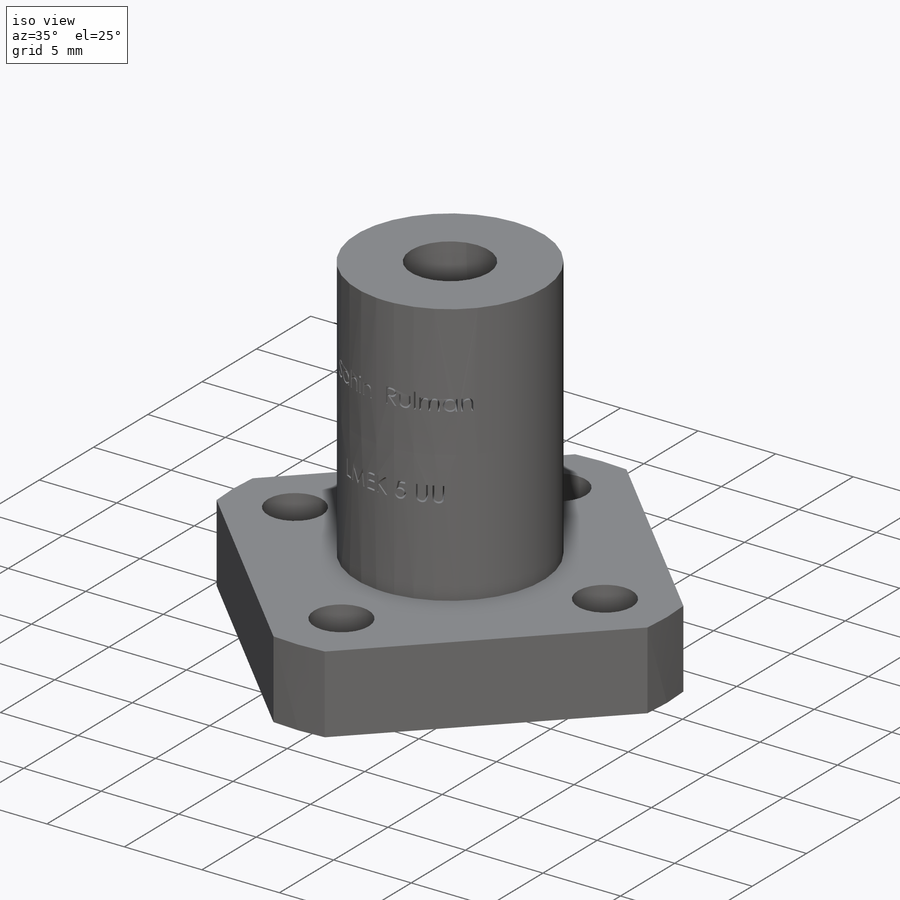
[diagram: iso view]
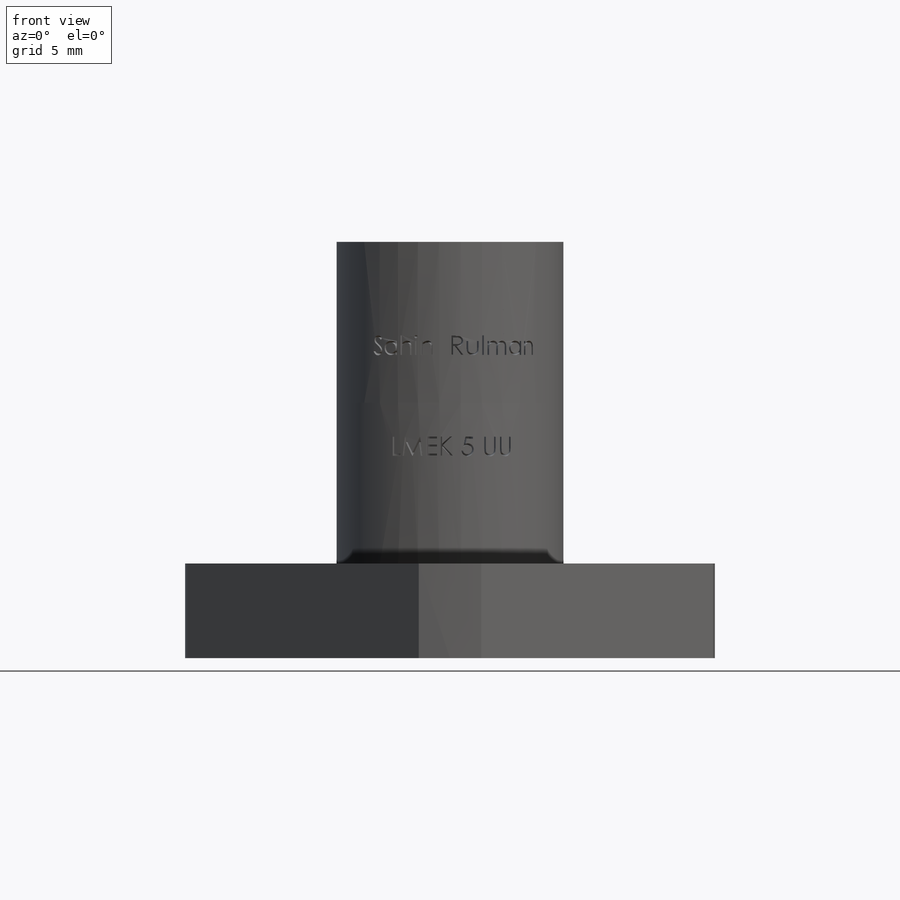
[diagram: front view]
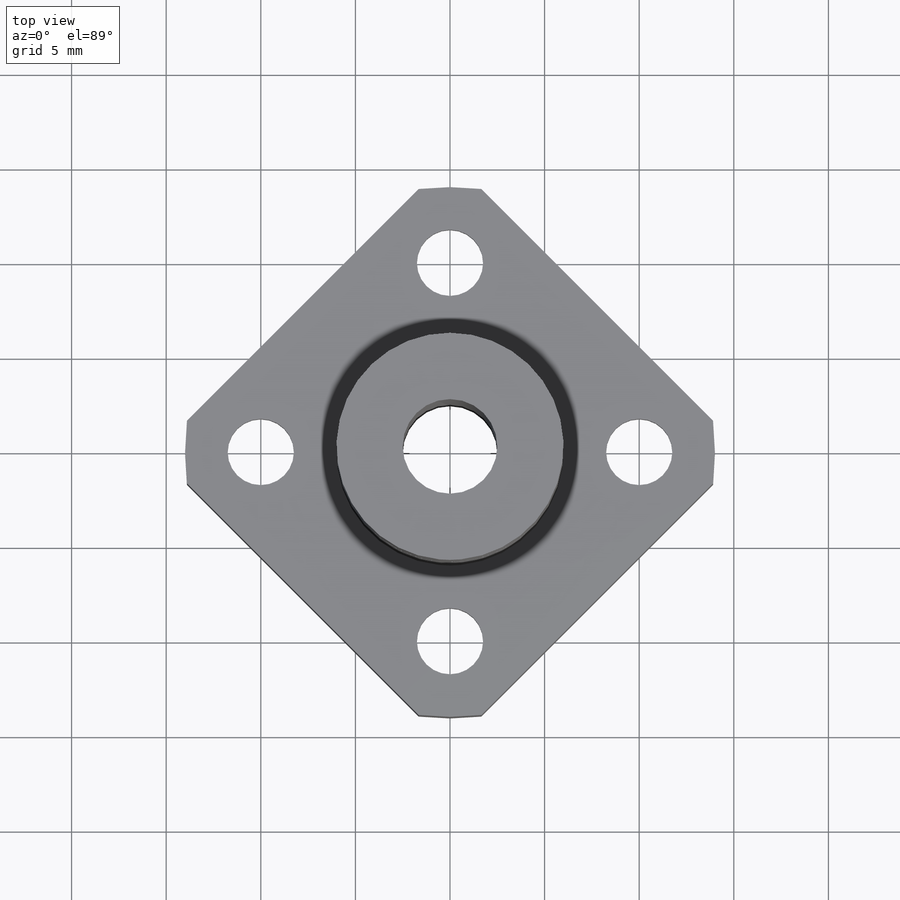
[diagram: top view]
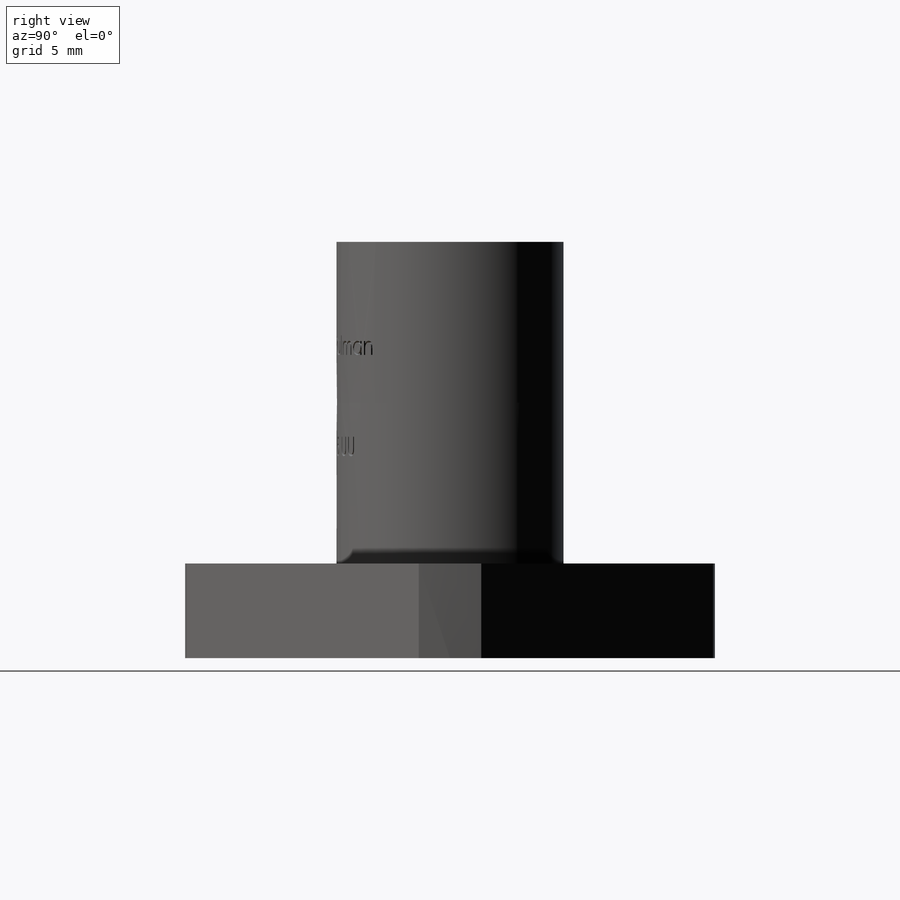
[diagram: right view]
SOLIDWORKS PART (.sldprt)
format: sldprt  version: not decoded by parser v0  size: 793,600 bytes
history: native  units: mm
features: sketch x6, cut_extrude x3, extrude x2, material x1, plane x1 (+11 scaffold rows collapsed)
feature tree (24):
  scaffold x11  (default folders/planes/origin — collapsed)
  material  "Material <not specified>"
  sketch  "Sketch1"  dims[D1=28.0mm D2=5.0mm]
  extrude  "Boss-Extrude1"  Depth=5mm
  sketch  "Sketch3"  dims[D1=20.0mm D2=3.5mm D3=4.0]
  cut_extrude  "Cut-Extrude1"  [1 undecoded]
  sketch  "Sketch4"  dims[D1=6.0mm D2=4.0]
  cut_extrude  "Cut-Extrude2"  Depth=3.1mm
  sketch  "Sketch5"  dims[D1=12.0mm]
  extrude  "Boss-Extrude2"  Depth=17mm
  plane  "Plane2"  Offset=22.943811mm
  sketch  "Sketch6"  dims[D1=1.0mm]
  sketch  "Sketch7"  dims[D1=22.0mm]
  cut_extrude  "Cut-Extrude3"  Depth=10mm
decode coverage: 10 of 11 modeling features carry decoded parameters
note: 1 parameter value undecoded
note: suppression state not decoded; provenance and decode notes live in map.json
